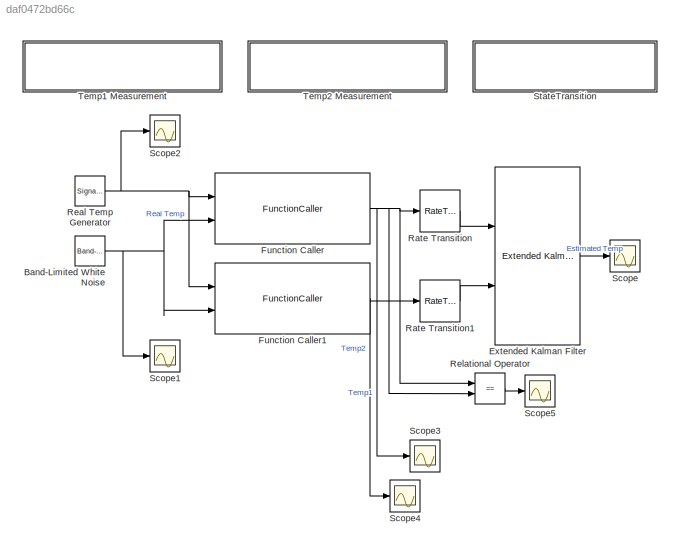
MODEL slx_daf0472bd66c
KIND model
CONFIG AbsTol = auto
CONFIG EnableMultiTasking = off
CONFIG FixedStep = auto
CONFIG MaxStep = auto
CONFIG MinStep = auto
CONFIG RelTol = 1e-3
CONFIG SampleTimeConstraint = Unconstrained
CONFIG Solver = VariableStepAuto
CONFIG SolverName = VariableStepAuto
CONFIG StartTime = 0.0
CONFIG StopTime = 10
BLOCK [Reference] Band-Limited White Noise  REF=simulink/Sources/Band-Limited
White Noise
  Ports = [0, 1]
  SourceBlock = simulink/Sources/Band-Limited\nWhite Noise
  SourceProductBaseCode = SL
  SourceProductName = Simulink
  SourceType = Band-Limited White Noise.
BLOCK [Reference] Extended Kalman Filter  REF=sharedTrackingLibrary/Extended Kalman Filter
  Ports = [2, 1]
  SourceBlock = sharedTrackingLibrary/Extended Kalman Filter
  SourceProductBaseCode = CT
  SourceProductName = Control System Toolbox
  SourceType = Extended Kalman Filter
BLOCK [FunctionCaller] Function Caller
  FunctionPrototype = y = Temp1MeasurementFcn(x,v)
  Ports = [2, 1]
BLOCK [FunctionCaller] Function Caller1
  FunctionPrototype = y = Temp2MeasurementFcn(x,v)
  Ports = [2, 1]
BLOCK [RateTransition] Rate Transition
BLOCK [RateTransition] Rate Transition1
BLOCK [SignalGenerator] Real Temp Generator
  Ports = [0, 1]
  Units = rad/sec
BLOCK [RelationalOperator] Relational Operator
  InputSameDT = off
  Operator = ==
  OutDataTypeStr = boolean
  Ports = [2, 1]
  RndMeth = Simplest
BLOCK [Scope] Scope
  Floating = off
  NumInputPorts = 1
  Ports = [1]
  ScopeSpecificationString = Simulink.scopes.TimeScopeBlockCfg('CurrentConfiguration', extmgr.ConfigurationSet(extmgr.Configuration('Core','General UI',true),extmgr.Configuration('Core','Source UI',true),extmgr.Configuration('Sources','WiredSimulink',true),extmgr.Configuration('Visuals','Time Domain',true,'SerializedDisplays',{struct('MinYLimReal','-1.48808','MaxYLimReal','1.53875','YLabelReal','','MinYLimMag','0.00000','MaxY...<+1334ch>
BLOCK [Scope] Scope1
  Floating = off
  NumInputPorts = 1
  Ports = [1]
  ScopeSpecificationString = Simulink.scopes.TimeScopeBlockCfg('CurrentConfiguration', extmgr.ConfigurationSet(extmgr.Configuration('Core','General UI',true),extmgr.Configuration('Core','Source UI',true),extmgr.Configuration('Sources','WiredSimulink',true,'DataLoggingVariableName','ScopeData1'),extmgr.Configuration('Visuals','Time Domain',true,'SerializedDisplays',{struct('MinYLimReal','-0.4641','MaxYLimReal','0.48978','YLabe...<+1381ch>
BLOCK [Scope] Scope2
  Floating = off
  NumInputPorts = 1
  Ports = [1]
  ScopeSpecificationString = Simulink.scopes.TimeScopeBlockCfg('CurrentConfiguration', extmgr.ConfigurationSet(extmgr.Configuration('Core','General UI',true),extmgr.Configuration('Core','Source UI',true),extmgr.Configuration('Sources','WiredSimulink',true,'DataLoggingVariableName','ScopeData2'),extmgr.Configuration('Visuals','Time Domain',true,'SerializedDisplays',{struct('MinYLimReal','-1.25','MaxYLimReal','1.25','YLabelReal...<+1350ch>
BLOCK [Scope] Scope3
  Floating = off
  NumInputPorts = 1
  Ports = [1]
  ScopeSpecificationString = Simulink.scopes.TimeScopeBlockCfg('CurrentConfiguration', extmgr.ConfigurationSet(extmgr.Configuration('Core','General UI',true),extmgr.Configuration('Core','Source UI',true),extmgr.Configuration('Sources','WiredSimulink',true,'DataLoggingVariableName','ScopeData3'),extmgr.Configuration('Visuals','Time Domain',true,'SerializedDisplays',{struct('MinYLimReal','-0.5707','MaxYLimReal','2.66488','YLabe...<+1410ch>
BLOCK [Scope] Scope4
  Floating = off
  NumInputPorts = 1
  Ports = [1]
  ScopeSpecificationString = Simulink.scopes.TimeScopeBlockCfg('CurrentConfiguration', extmgr.ConfigurationSet(extmgr.Configuration('Core','General UI',true),extmgr.Configuration('Core','Source UI',true),extmgr.Configuration('Sources','WiredSimulink',true,'DataLoggingVariableName','ScopeData4'),extmgr.Configuration('Visuals','Time Domain',true,'SerializedDisplays',{struct('MinYLimReal','-2.5707','MaxYLimReal','0.66488','YLabe...<+1408ch>
BLOCK [Scope] Scope5
  Floating = off
  NumInputPorts = 1
  Ports = [1]
  ScopeSpecificationString = Simulink.scopes.TimeScopeBlockCfg('CurrentConfiguration', extmgr.ConfigurationSet(extmgr.Configuration('Core','General UI',true),extmgr.Configuration('Core','Source UI',true),extmgr.Configuration('Sources','WiredSimulink',true,'DataLoggingVariableName','ScopeData1'),extmgr.Configuration('Visuals','Time Domain',true,'SerializedDisplays',{struct('MinYLimReal','0.9','MaxYLimReal','1.1','YLabelReal','...<+1344ch>
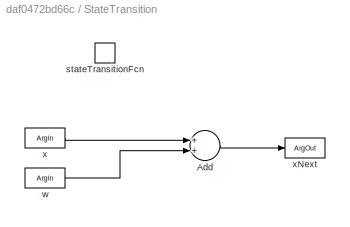
BLOCK [SubSystem] StateTransition
  Ports = [0, 0, 0, 1]
  RequestExecContextInheritance = off
  TreatAsAtomicUnit = on
BLOCK [Sum] StateTransition/Add
  InputSameDT = off
  OutDataTypeStr = Inherit: Inherit via internal rule
  Ports = [2, 1]
  SaturateOnIntegerOverflow = off
BLOCK [TriggerPort] StateTransition/stateTransitionFcn
  FunctionName = stateTransitionFcn
  FunctionVisibility = scoped
  IsSimulinkFunction = on
  Ports = []
  StatesWhenEnabling = held
  TriggerType = function-call
  VariantControl = (inherit)
BLOCK [ArgIn] StateTransition/w
  ArgumentName = w
  Port = 2
BLOCK [ArgIn] StateTransition/x
  ArgumentName = x
  DisableCoverage = on
BLOCK [ArgOut] StateTransition/xNext
  ArgumentName = xNext
  DisableCoverage = on
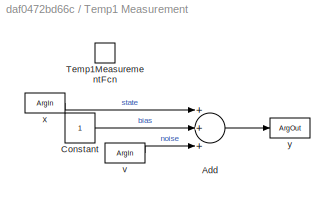
BLOCK [SubSystem] Temp1 Measurement
  Ports = [0, 0, 0, 1]
  RequestExecContextInheritance = off
  TreatAsAtomicUnit = on
BLOCK [Sum] Temp1 Measurement/Add
  InputSameDT = off
  Inputs = +++
  OutDataTypeStr = Inherit: Inherit via internal rule
  Ports = [3, 1]
  SaturateOnIntegerOverflow = off
BLOCK [Constant] Temp1 Measurement/Constant
BLOCK [TriggerPort] Temp1 Measurement/Temp1MeasurementFcn
  FunctionName = Temp1MeasurementFcn
  FunctionVisibility = scoped
  IsSimulinkFunction = on
  Ports = []
  StatesWhenEnabling = held
  TriggerType = function-call
  VariantControl = (inherit)
BLOCK [ArgIn] Temp1 Measurement/v
  ArgumentName = v
  Port = 2
BLOCK [ArgIn] Temp1 Measurement/x
  ArgumentName = x
  DisableCoverage = on
BLOCK [ArgOut] Temp1 Measurement/y
  ArgumentName = y
  DisableCoverage = on
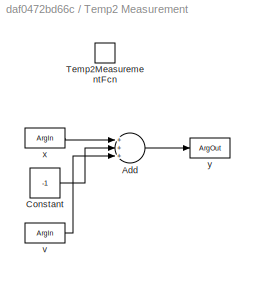
BLOCK [SubSystem] Temp2 Measurement
  Ports = [0, 0, 0, 1]
  RequestExecContextInheritance = off
  TreatAsAtomicUnit = on
BLOCK [Sum] Temp2 Measurement/Add
  InputSameDT = off
  Inputs = +++
  OutDataTypeStr = Inherit: Inherit via internal rule
  Ports = [3, 1]
  SaturateOnIntegerOverflow = off
BLOCK [Constant] Temp2 Measurement/Constant
  Value = -1
BLOCK [TriggerPort] Temp2 Measurement/Temp2MeasurementFcn
  FunctionName = Temp2MeasurementFcn
  FunctionVisibility = scoped
  IsSimulinkFunction = on
  Ports = []
  StatesWhenEnabling = held
  TriggerType = function-call
  VariantControl = (inherit)
BLOCK [ArgIn] Temp2 Measurement/v
  ArgumentName = v
  Port = 2
BLOCK [ArgIn] Temp2 Measurement/x
  ArgumentName = x
  DisableCoverage = on
BLOCK [ArgOut] Temp2 Measurement/y
  ArgumentName = y
  DisableCoverage = on
NET Band-Limited White Noise:1 -> Function Caller1:2, Function Caller:2, Scope1:1
LINE Extended Kalman Filter:1 -> Scope:1
NET Function Caller1:1 -> Rate Transition1:1, Scope4:1
NET Function Caller:1 -> Rate Transition:1, Relational Operator:1, Relational Operator:2, Scope3:1
LINE Rate Transition1:1 -> Extended Kalman Filter:2
LINE Rate Transition:1 -> Extended Kalman Filter:1
NET Real Temp Generator:1 -> Function Caller1:1, Function Caller:1, Scope2:1
LINE Relational Operator:1 -> Scope5:1
LINE StateTransition/Add:1 -> StateTransition/xNext:1
LINE StateTransition/w:1 -> StateTransition/Add:2
LINE StateTransition/x:1 -> StateTransition/Add:1
LINE Temp1 Measurement/Add:1 -> Temp1 Measurement/y:1
LINE Temp1 Measurement/Constant:1 -> Temp1 Measurement/Add:2
LINE Temp1 Measurement/v:1 -> Temp1 Measurement/Add:3
LINE Temp1 Measurement/x:1 -> Temp1 Measurement/Add:1
LINE Temp2 Measurement/Add:1 -> Temp2 Measurement/y:1
LINE Temp2 Measurement/Constant:1 -> Temp2 Measurement/Add:2
LINE Temp2 Measurement/v:1 -> Temp2 Measurement/Add:3
LINE Temp2 Measurement/x:1 -> Temp2 Measurement/Add:1
note: NET lines group one-source signal fan-out (src -> all destinations, sorted); 1:1 wires keep LINE
